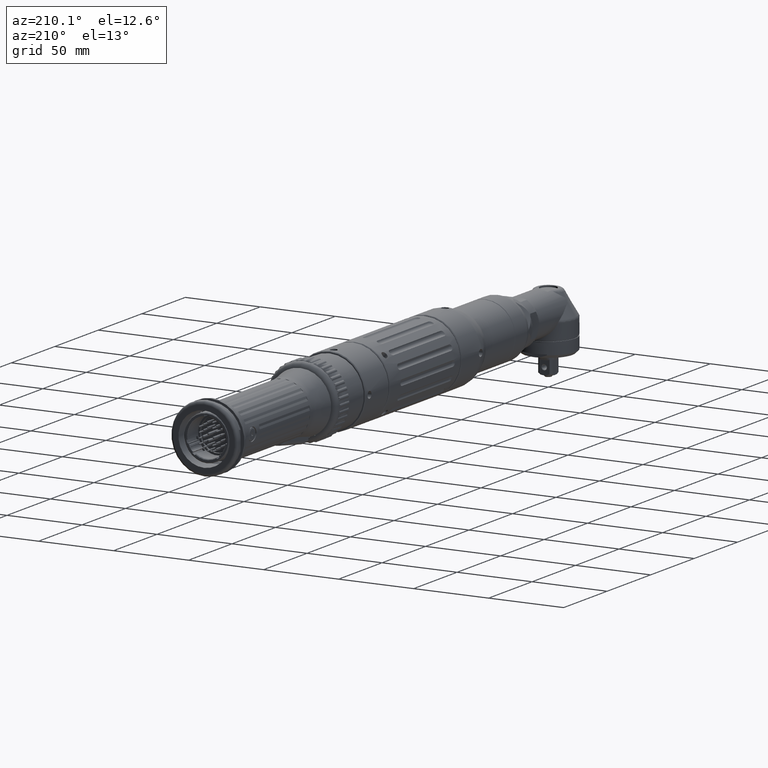
[diagram: clean part render]
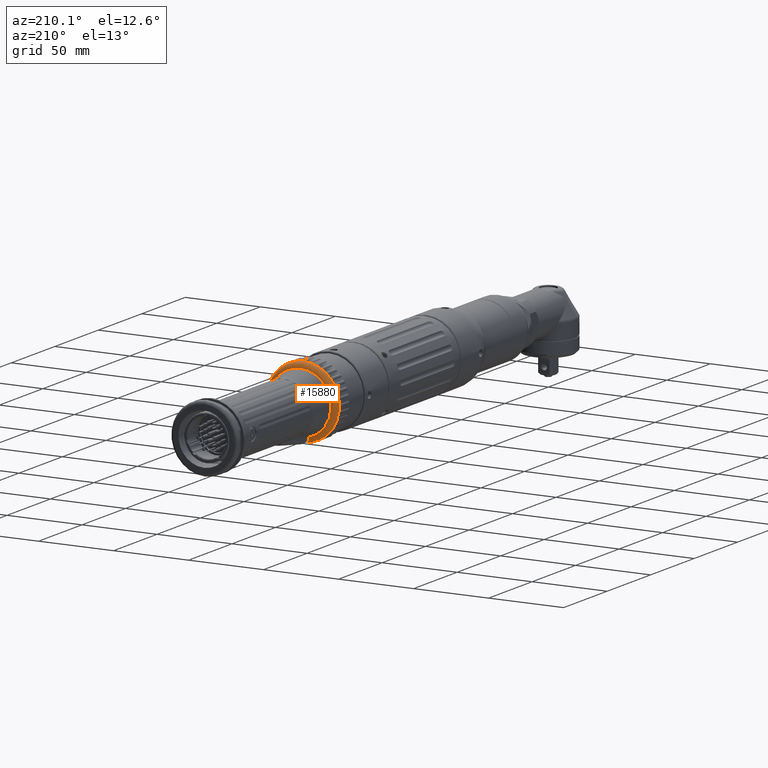
[diagram: same view with one face highlighted and labeled with its STEP entity id]
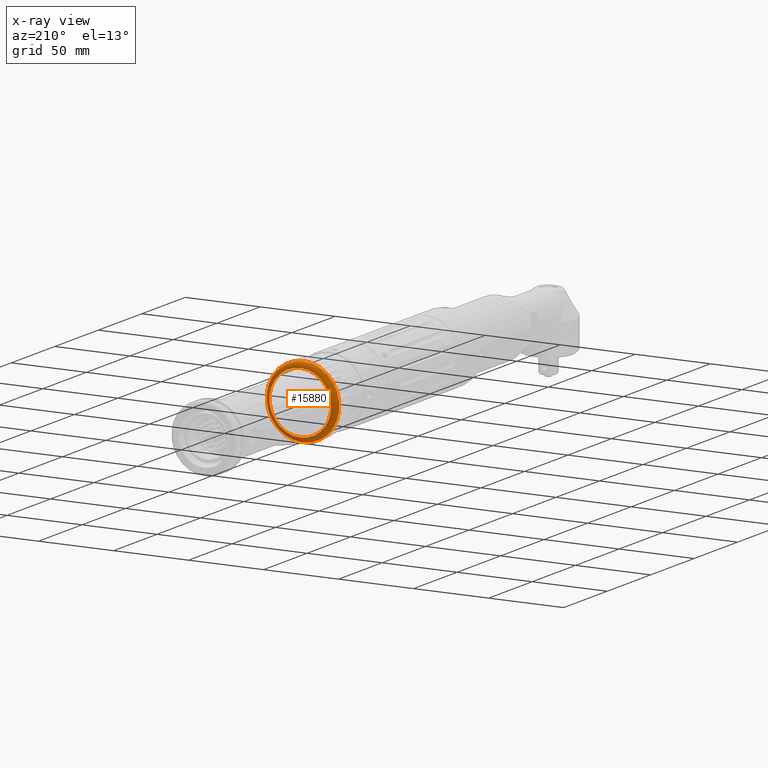
[diagram: x-ray of the same camera — body ghosted, the highlighted face saturated]
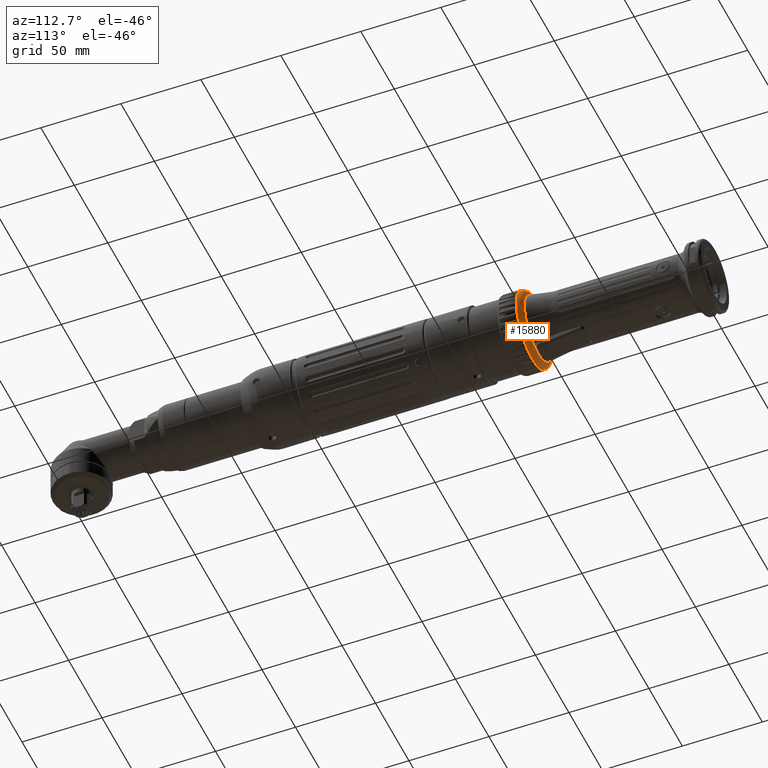
[diagram: same view with one face highlighted and labeled with its STEP entity id]
A machine part, auxiliary view. The second image highlights one B-rep face of the part: STEP entity #15880.
The next image is the same camera in x-ray: the body ghosted, the highlighted face saturated — about 12% of this face is hidden behind the body in this view.
A second angle (auxiliary view) of the same face is appended — the face is thin or edge-on in the first view.
In plain terms, the highlighted toroidal blend (fillet) surface has major radius 20.5 mm and minor (blend) radius 3.5 mm.
Its self-contained STEP definition (entity closure, byte-faithful):
#134=TOROIDAL_SURFACE('',#17309,20.5,3.5);
#2561=FACE_BOUND('',#4158,.T.);
#3127=FACE_OUTER_BOUND('',#4157,.T.);
#4157=EDGE_LOOP('',(#11191));
#4158=EDGE_LOOP('',(#11192));
#5409=CIRCLE('',#17308,24.);
#5410=CIRCLE('',#17310,20.6);
#6558=VERTEX_POINT('',#25676);
#6559=VERTEX_POINT('',#25679);
#8296=EDGE_CURVE('',#6558,#6558,#5409,.T.);
#8297=EDGE_CURVE('',#6559,#6559,#5410,.T.);
#11191=ORIENTED_EDGE('',*,*,#8297,.F.);
#11192=ORIENTED_EDGE('',*,*,#8296,.T.);
#15880=ADVANCED_FACE('',(#3127,#2561),#134,.T.);
#17308=AXIS2_PLACEMENT_3D('',#25677,#20480,#20481);
#17309=AXIS2_PLACEMENT_3D('',#25678,#20482,#20483);
#17310=AXIS2_PLACEMENT_3D('',#25680,#20484,#20485);
#20480=DIRECTION('center_axis',(-6.34025434611302E-16,1.,-2.08452620493453E-17));
#20481=DIRECTION('ref_axis',(-1.,-6.34025434611302E-16,-9.79526914692857E-15));
#20482=DIRECTION('center_axis',(-6.34025434611302E-16,1.,-2.08452620493453E-17));
#20483=DIRECTION('ref_axis',(-1.,0.,-9.79526914692858E-15));
#20484=DIRECTION('center_axis',(-6.34025434611302E-16,1.,-2.08452620493453E-17));
#20485=DIRECTION('ref_axis',(-1.,-6.34025434611302E-16,-9.79526914692857E-15));
#25676=CARTESIAN_POINT('',(-6.64047209996335E-13,281.701428863093,24.0000000000003));
#25677=CARTESIAN_POINT('Origin',(-4.28960750470049E-13,281.701428863093,
3.34339465391903E-13));
#25678=CARTESIAN_POINT('Origin',(-4.28960750470049E-13,281.701428863093,
3.34339465391903E-13));
#25679=CARTESIAN_POINT('',(-6.32961477982374E-13,285.2,20.6000000000003));
#25680=CARTESIAN_POINT('Origin',(-4.31178933555645E-13,285.2,3.34266536759756E-13));